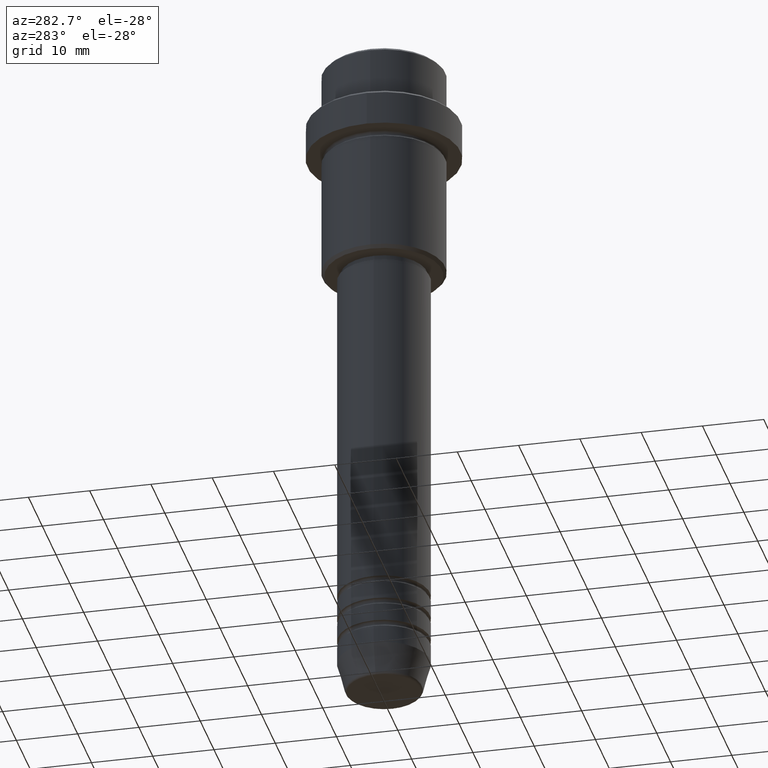
[diagram: clean part render]
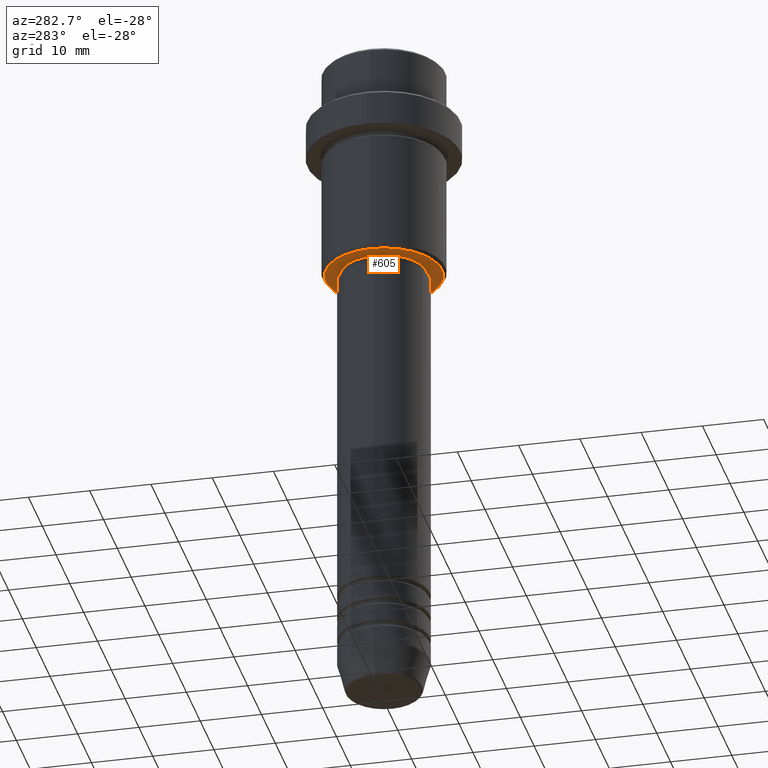
[diagram: same view with one face highlighted and labeled with its STEP entity id]
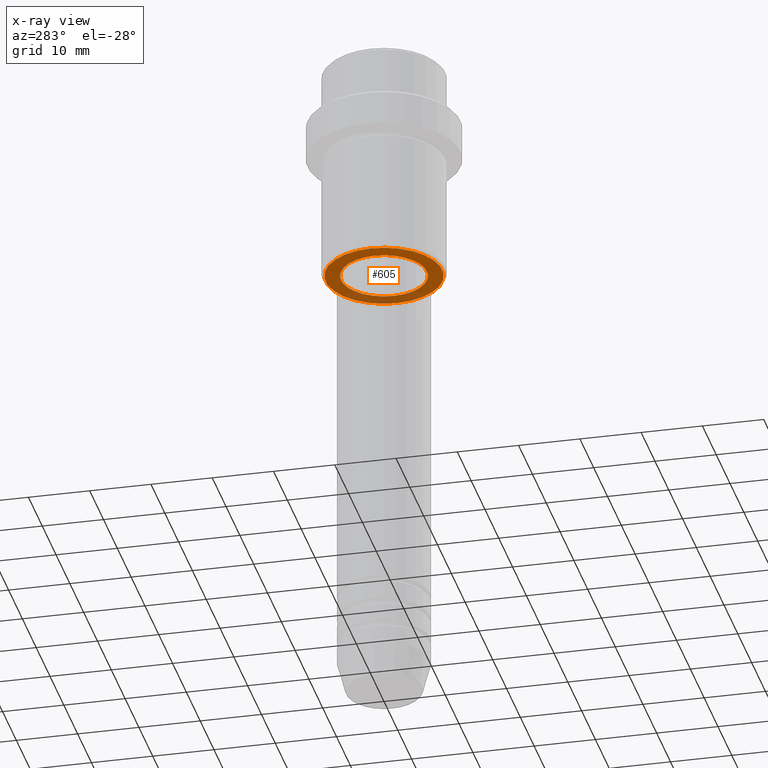
[diagram: x-ray of the same camera — body ghosted, the highlighted face saturated]
A machine part, auxiliary view. The second image highlights one B-rep face of the part: STEP entity #605.
The next image is the same camera in x-ray: the body ghosted, the highlighted face saturated — about 25% of this face is hidden behind the body in this view.
In plain terms, the highlighted planar face has unit normal (0, 0, -1).
Its self-contained STEP definition (entity closure, byte-faithful):
#1 = CARTESIAN_POINT ( 'NONE',  ( -9.499999999999980460, 1.194030629168668286E-15, -36.00000000000000711 ) ) ;
#55 = DIRECTION ( 'NONE',  ( 0.000000000000000000, 0.000000000000000000, -1.000000000000000000 ) ) ;
#71 = AXIS2_PLACEMENT_3D ( 'NONE', #202, #1107, #321 ) ;
#81 = DIRECTION ( 'NONE',  ( -0.000000000000000000, -0.000000000000000000, 1.000000000000000000 ) ) ;
#95 = CARTESIAN_POINT ( 'NONE',  ( 0.000000000000000000, 10.00000000000000000, -36.00000000000000711 ) ) ;
#202 = CARTESIAN_POINT ( 'NONE',  ( 0.000000000000000000, 0.000000000000000000, -36.00000000000000711 ) ) ;
#277 = CARTESIAN_POINT ( 'NONE',  ( 9.499999999999980460, 0.000000000000000000, -36.00000000000000711 ) ) ;
#321 = DIRECTION ( 'NONE',  ( -1.000000000000000000, 0.000000000000000000, 0.000000000000000000 ) ) ;
#354 = ORIENTED_EDGE ( 'NONE', *, *, #444, .T. ) ;
#398 = DIRECTION ( 'NONE',  ( -0.000000000000000000, -0.000000000000000000, 1.000000000000000000 ) ) ;
#444 = EDGE_CURVE ( 'NONE', #1305, #1067, #1218, .T. ) ;
#489 = DIRECTION ( 'NONE',  ( -1.000000000000000000, 0.000000000000000000, 0.000000000000000000 ) ) ;
#543 = DIRECTION ( 'NONE',  ( 1.000000000000000000, 0.000000000000000000, 0.000000000000000000 ) ) ;
#560 = EDGE_LOOP ( 'NONE', ( #1341, #354 ) ) ;
#589 = CARTESIAN_POINT ( 'NONE',  ( 0.000000000000000000, 0.000000000000000000, -36.00000000000000711 ) ) ;
#605 = ADVANCED_FACE ( 'NONE', ( #718, #953 ), #832, .T. ) ;
#609 = DIRECTION ( 'NONE',  ( -1.000000000000000000, 0.000000000000000000, -0.000000000000000000 ) ) ;
#635 = CIRCLE ( 'NONE', #1223, 6.999999999999993783 ) ;
#680 = CIRCLE ( 'NONE', #71, 9.499999999999980460 ) ;
#709 = EDGE_CURVE ( 'NONE', #1105, #1019, #1381, .T. ) ;
#711 = CARTESIAN_POINT ( 'NONE',  ( 0.000000000000000000, 0.000000000000000000, -36.00000000000000711 ) ) ;
#718 = FACE_OUTER_BOUND ( 'NONE', #560, .T. ) ;
#782 = EDGE_CURVE ( 'NONE', #1067, #1305, #680, .T. ) ;
#795 = ORIENTED_EDGE ( 'NONE', *, *, #1142, .T. ) ;
#817 = AXIS2_PLACEMENT_3D ( 'NONE', #95, #1302, #609 ) ;
#832 = PLANE ( 'NONE',  #817 ) ;
#837 = CARTESIAN_POINT ( 'NONE',  ( -6.999999999999993783, 8.572527594031465301E-16, -36.00000000000000711 ) ) ;
#840 = DIRECTION ( 'NONE',  ( 1.000000000000000000, 0.000000000000000000, 0.000000000000000000 ) ) ;
#953 = FACE_BOUND ( 'NONE', #1001, .T. ) ;
#1001 = EDGE_LOOP ( 'NONE', ( #795, #1328 ) ) ;
#1019 = VERTEX_POINT ( 'NONE', #1402 ) ;
#1065 = CARTESIAN_POINT ( 'NONE',  ( 0.000000000000000000, 0.000000000000000000, -36.00000000000000711 ) ) ;
#1067 = VERTEX_POINT ( 'NONE', #277 ) ;
#1098 = AXIS2_PLACEMENT_3D ( 'NONE', #589, #55, #489 ) ;
#1105 = VERTEX_POINT ( 'NONE', #837 ) ;
#1107 = DIRECTION ( 'NONE',  ( 0.000000000000000000, 0.000000000000000000, -1.000000000000000000 ) ) ;
#1142 = EDGE_CURVE ( 'NONE', #1019, #1105, #635, .T. ) ;
#1148 = AXIS2_PLACEMENT_3D ( 'NONE', #1065, #398, #840 ) ;
#1218 = CIRCLE ( 'NONE', #1098, 9.499999999999980460 ) ;
#1223 = AXIS2_PLACEMENT_3D ( 'NONE', #711, #81, #543 ) ;
#1302 = DIRECTION ( 'NONE',  ( 0.000000000000000000, 0.000000000000000000, -1.000000000000000000 ) ) ;
#1305 = VERTEX_POINT ( 'NONE', #1 ) ;
#1328 = ORIENTED_EDGE ( 'NONE', *, *, #709, .T. ) ;
#1341 = ORIENTED_EDGE ( 'NONE', *, *, #782, .T. ) ;
#1381 = CIRCLE ( 'NONE', #1148, 6.999999999999993783 ) ;
#1402 = CARTESIAN_POINT ( 'NONE',  ( 6.999999999999993783, 0.000000000000000000, -36.00000000000000711 ) ) ;